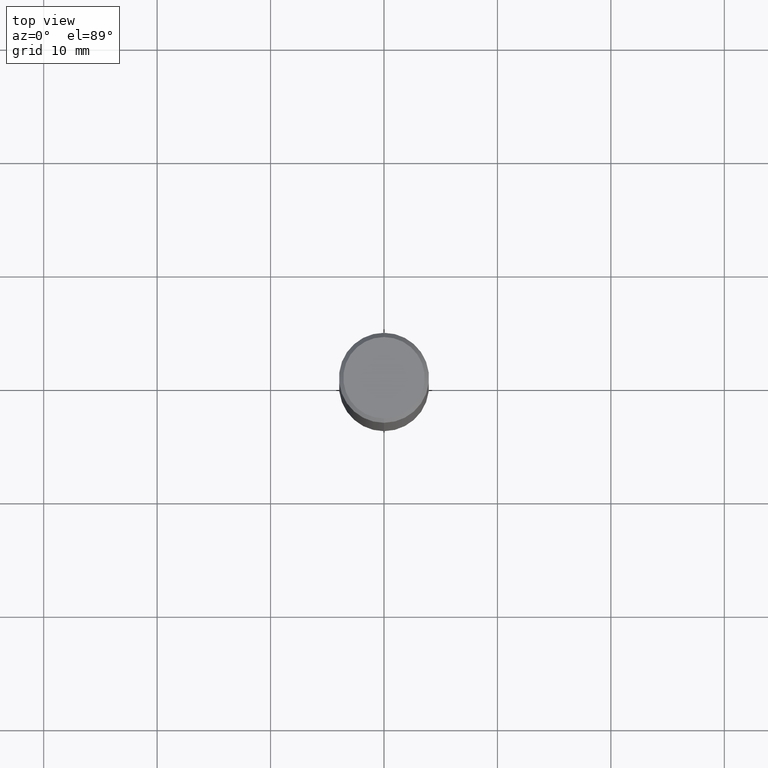
[diagram: clean part render]
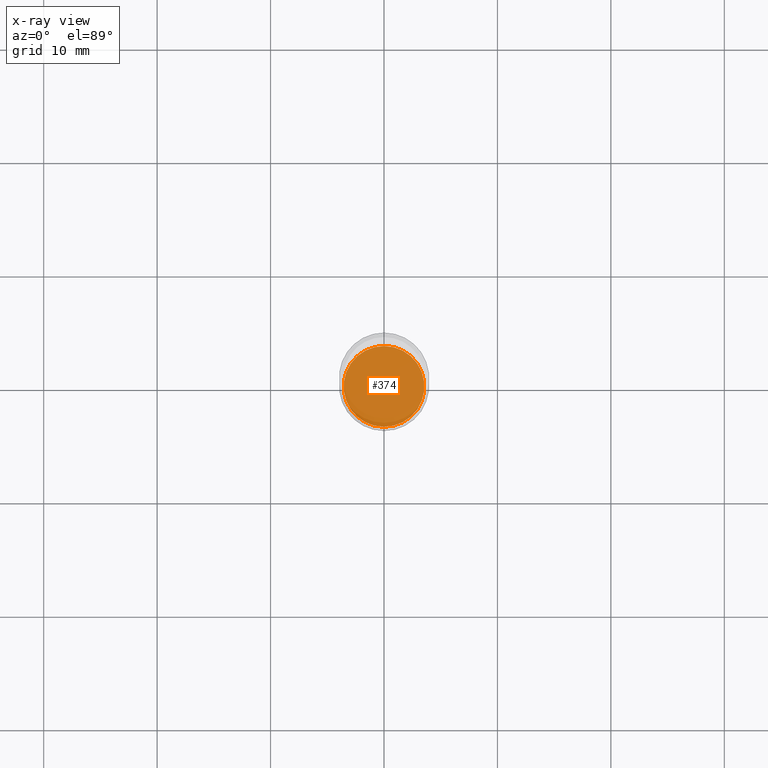
[diagram: x-ray — body ghosted, one internal face saturated and labeled with its STEP entity id]
A machine part, top view, then the same camera in x-ray: the body is ghosted and one INTERNAL B-rep face — a face not visible from any outside direction — is saturated and labeled: STEP entity #374.
In plain terms, the highlighted planar face has unit normal (-0, 0, 1).
Its self-contained STEP definition (entity closure, byte-faithful):
#6 = CARTESIAN_POINT ( 'NONE',  ( 4.279355467653306195E-29, -6.110400153829729604E-15, -1.750000000000000222 ) ) ;
#15 = AXIS2_PLACEMENT_3D ( 'NONE', #6, #125, #333 ) ;
#41 = ORIENTED_EDGE ( 'NONE', *, *, #466, .F. ) ;
#43 = FACE_OUTER_BOUND ( 'NONE', #256, .T. ) ;
#50 = CARTESIAN_POINT ( 'NONE',  ( -9.783130711438031058E-16, -0.1401000000000061085, -1.749999999999999556 ) ) ;
#72 = CIRCLE ( 'NONE', #149, 0.1401000000000000023 ) ;
#93 = CARTESIAN_POINT ( 'NONE',  ( 9.972467296393428329E-16, 0.1400999999999938961, -1.750000000000000666 ) ) ;
#121 = DIRECTION ( 'NONE',  ( -6.982962677686265922E-15, -1.000000000000000000, 3.899854380677035588E-15 ) ) ;
#125 = DIRECTION ( 'NONE',  ( -2.445345981516174728E-29, 3.491657230759845150E-15, 1.000000000000000000 ) ) ;
#149 = AXIS2_PLACEMENT_3D ( 'NONE', #354, #164, #121 ) ;
#164 = DIRECTION ( 'NONE',  ( -2.445345981516174728E-29, 3.491657230759845150E-15, 1.000000000000000000 ) ) ;
#205 = PLANE ( 'NONE',  #426 ) ;
#234 = CIRCLE ( 'NONE', #15, 0.1401000000000000023 ) ;
#252 = DIRECTION ( 'NONE',  ( -6.982962677686265922E-15, -1.000000000000000000, 3.491657230759844755E-15 ) ) ;
#256 = EDGE_LOOP ( 'NONE', ( #41, #371 ) ) ;
#283 = DIRECTION ( 'NONE',  ( -2.445345981516174448E-29, 3.491657230759844755E-15, 1.000000000000000000 ) ) ;
#333 = DIRECTION ( 'NONE',  ( -6.982962677686265922E-15, -1.000000000000000000, 3.899854380677035588E-15 ) ) ;
#346 = EDGE_CURVE ( 'NONE', #475, #491, #72, .T. ) ;
#354 = CARTESIAN_POINT ( 'NONE',  ( 4.279355467653306195E-29, -6.110400153829729604E-15, -1.750000000000000222 ) ) ;
#371 = ORIENTED_EDGE ( 'NONE', *, *, #346, .F. ) ;
#374 = ADVANCED_FACE ( 'NONE', ( #43 ), #205, .F. ) ;
#400 = CARTESIAN_POINT ( 'NONE',  ( 4.279355467653306195E-29, -6.110400153829729604E-15, -1.750000000000000222 ) ) ;
#426 = AXIS2_PLACEMENT_3D ( 'NONE', #400, #283, #252 ) ;
#466 = EDGE_CURVE ( 'NONE', #491, #475, #234, .T. ) ;
#475 = VERTEX_POINT ( 'NONE', #93 ) ;
#491 = VERTEX_POINT ( 'NONE', #50 ) ;